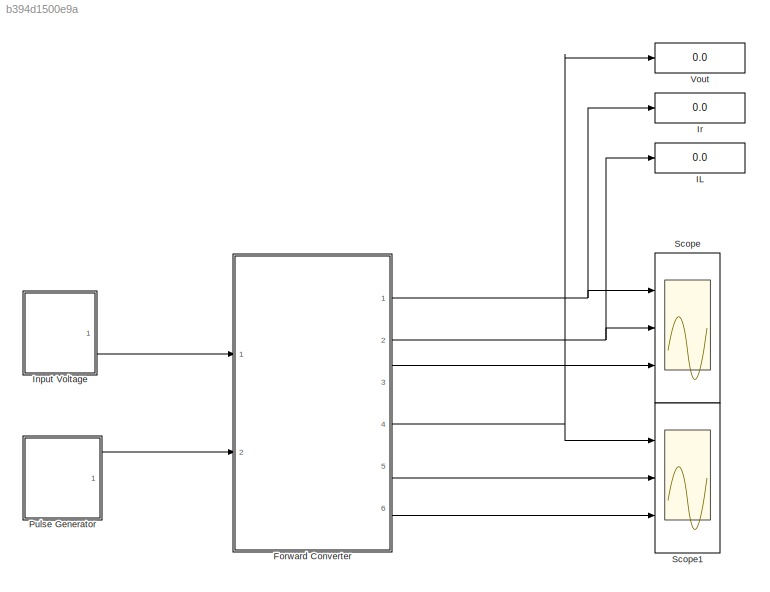
MODEL slx_b394d1500e9a
KIND model
CONFIG AbsTol = auto
CONFIG FixedStep = auto
CONFIG MaxStep = auto
CONFIG MinStep = auto
CONFIG RelTol = 1e-3
CONFIG SampleTimeConstraint = Unconstrained
CONFIG Solver = ode45
CONFIG SolverMode = Auto
CONFIG SolverName = ode45
CONFIG StartTime = 0.0
CONFIG StopTime = 0.01
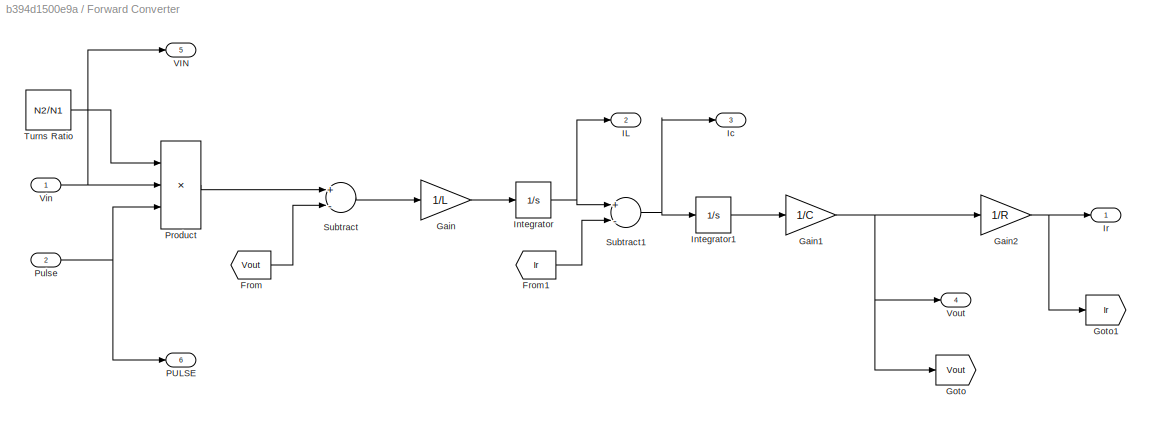
BLOCK [SubSystem] Forward Converter
  Ports = [2, 6]
  RequestExecContextInheritance = off
BLOCK [From] Forward Converter/From
  GotoTag = Vout
BLOCK [From] Forward Converter/From1
  GotoTag = Ir
BLOCK [Gain] Forward Converter/Gain
  Gain = 1/L
  OutDataTypeStr = Inherit: Inherit via internal rule
  ParamDataTypeStr = Inherit: Inherit via internal rule
  SaturateOnIntegerOverflow = off
BLOCK [Gain] Forward Converter/Gain1
  Gain = 1/C
  OutDataTypeStr = Inherit: Inherit via internal rule
  ParamDataTypeStr = Inherit: Inherit via internal rule
  SaturateOnIntegerOverflow = off
BLOCK [Gain] Forward Converter/Gain2
  Gain = 1/R
  OutDataTypeStr = Inherit: Inherit via internal rule
  ParamDataTypeStr = Inherit: Inherit via internal rule
  SaturateOnIntegerOverflow = off
BLOCK [Goto] Forward Converter/Goto
  GotoTag = Vout
BLOCK [Goto] Forward Converter/Goto1
  GotoTag = Ir
BLOCK [Outport] Forward Converter/IL
  IconDisplay = Port number
  Port = 2
BLOCK [Outport] Forward Converter/Ic
  IconDisplay = Port number
  Port = 3
BLOCK [Integrator] Forward Converter/Integrator
  Ports = [1, 1]
BLOCK [Integrator] Forward Converter/Integrator1
  Ports = [1, 1]
BLOCK [Outport] Forward Converter/Ir
  IconDisplay = Port number
BLOCK [Outport] Forward Converter/PULSE
  IconDisplay = Port number
  Port = 6
BLOCK [Product] Forward Converter/Product
  InputSameDT = off
  Inputs = 3
  OutDataTypeStr = Inherit: Inherit via internal rule
  Ports = [3, 1]
  RndMeth = Floor
  SaturateOnIntegerOverflow = off
BLOCK [Inport] Forward Converter/Pulse
  IconDisplay = Port number
  Port = 2
BLOCK [Sum] Forward Converter/Subtract
  InputSameDT = off
  Inputs = +-
  OutDataTypeStr = Inherit: Inherit via internal rule
  Ports = [2, 1]
  SaturateOnIntegerOverflow = off
BLOCK [Sum] Forward Converter/Subtract1
  InputSameDT = off
  Inputs = +-
  OutDataTypeStr = Inherit: Inherit via internal rule
  Ports = [2, 1]
  SaturateOnIntegerOverflow = off
BLOCK [Constant] Forward Converter/Turns Ratio
  Value = N2/N1
BLOCK [Outport] Forward Converter/VIN
  IconDisplay = Port number
  Port = 5
BLOCK [Inport] Forward Converter/Vin
  IconDisplay = Port number
BLOCK [Outport] Forward Converter/Vout
  IconDisplay = Port number
  Port = 4
BLOCK [Display] IL
  Decimation = 1
  Ports = [1]
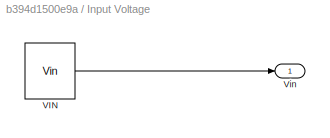
BLOCK [SubSystem] Input Voltage
  Ports = [0, 1]
  RequestExecContextInheritance = off
BLOCK [Constant] Input Voltage/VIN
  Value = Vin
BLOCK [Outport] Input Voltage/Vin
  IconDisplay = Port number
BLOCK [Display] Ir
  Decimation = 1
  Ports = [1]
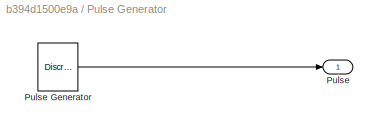
BLOCK [SubSystem] Pulse Generator
  Ports = [0, 1]
  RequestExecContextInheritance = off
BLOCK [Outport] Pulse Generator/Pulse
  IconDisplay = Port number
BLOCK [DiscretePulseGenerator] Pulse Generator/Pulse Generator
  Period = 1/Fsw
  Ports = [0, 1]
  PulseType = Time based
  PulseWidth = D*100
BLOCK [Scope] Scope
  Floating = off
  LimitDataPoints = off
  NumInputPorts = 3
  Ports = [3]
  YMax = 5~5~5
  YMin = -5~-5~-5
BLOCK [Scope] Scope1
  Floating = off
  LimitDataPoints = off
  NumInputPorts = 3
  Ports = [3]
  SaveName = ScopeData1
  YMax = 5~5~5
  YMin = -5~-5~-5
BLOCK [Display] Vout
  Decimation = 1
  Ports = [1]
LINE Forward Converter/From1:1 -> Forward Converter/Subtract1:2
LINE Forward Converter/From:1 -> Forward Converter/Subtract:2
NET Forward Converter/Gain1:1 -> Forward Converter/Gain2:1, Forward Converter/Goto:1, Forward Converter/Vout:1
NET Forward Converter/Gain2:1 -> Forward Converter/Goto1:1, Forward Converter/Ir:1
LINE Forward Converter/Gain:1 -> Forward Converter/Integrator:1
LINE Forward Converter/Integrator1:1 -> Forward Converter/Gain1:1
NET Forward Converter/Integrator:1 -> Forward Converter/IL:1, Forward Converter/Subtract1:1
LINE Forward Converter/Product:1 -> Forward Converter/Subtract:1
NET Forward Converter/Pulse:1 -> Forward Converter/PULSE:1, Forward Converter/Product:3
NET Forward Converter/Subtract1:1 -> Forward Converter/Ic:1, Forward Converter/Integrator1:1
LINE Forward Converter/Subtract:1 -> Forward Converter/Gain:1
LINE Forward Converter/Turns Ratio:1 -> Forward Converter/Product:1
NET Forward Converter/Vin:1 -> Forward Converter/Product:2, Forward Converter/VIN:1
NET Forward Converter:1 -> Ir:1, Scope:1
NET Forward Converter:2 -> IL:1, Scope:2
LINE Forward Converter:3 -> Scope:3
NET Forward Converter:4 -> Scope1:1, Vout:1
LINE Forward Converter:5 -> Scope1:2
LINE Forward Converter:6 -> Scope1:3
LINE Input Voltage/VIN:1 -> Input Voltage/Vin:1
LINE Input Voltage:1 -> Forward Converter:1
LINE Pulse Generator/Pulse Generator:1 -> Pulse Generator/Pulse:1
LINE Pulse Generator:1 -> Forward Converter:2
note: NET lines group one-source signal fan-out (src -> all destinations, sorted); 1:1 wires keep LINE
